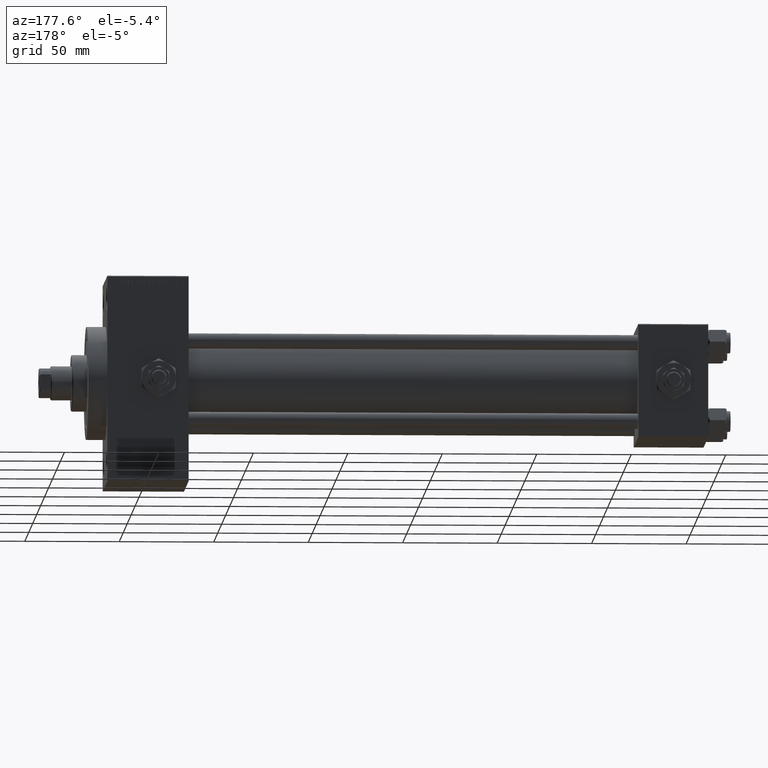
[diagram: clean part render]
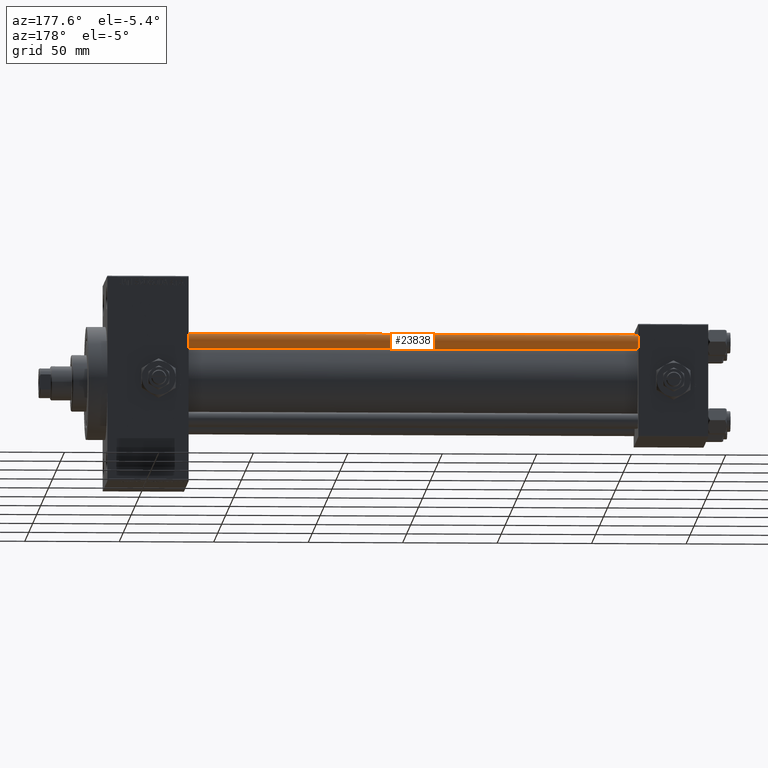
[diagram: same view with one face highlighted and labeled with its STEP entity id]
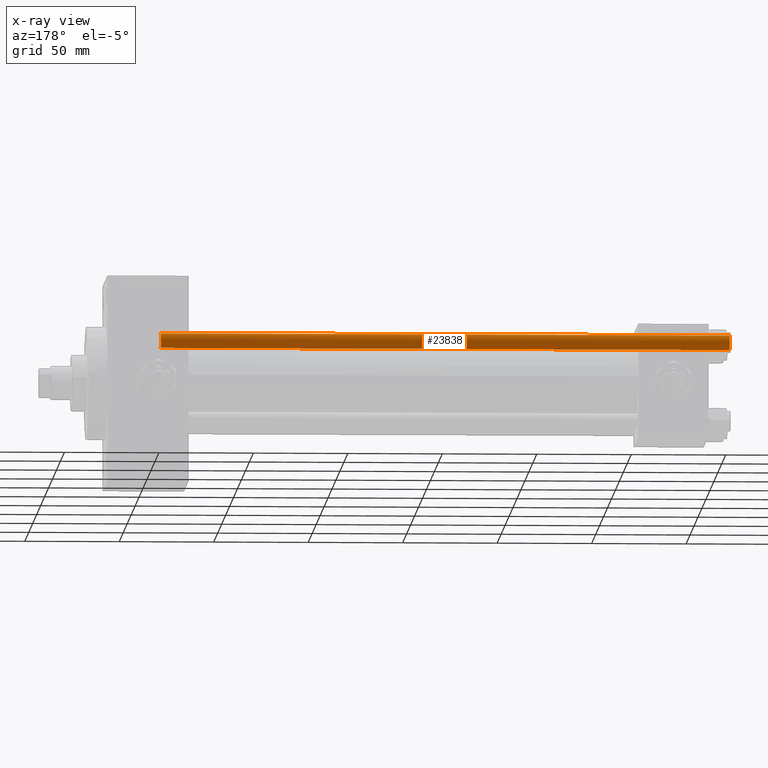
[diagram: x-ray of the same camera — body ghosted, the highlighted face saturated]
A machine part, auxiliary view. The second image highlights one B-rep face of the part: STEP entity #23838.
The next image is the same camera in x-ray: the body ghosted, the highlighted face saturated — about 0% of this face is hidden behind the body in this view.
In plain terms, the highlighted cylindrical surface (edge-blend (fillet) strip) has radius 4 mm, axis along (-1, -0, 0).
Its self-contained STEP definition (entity closure, byte-faithful):
#392 = CARTESIAN_POINT ( 'NONE',  ( -4.000000000000000000, 0.000000000000000000, 301.4999999999999432 ) ) ;
#1073 = AXIS2_PLACEMENT_3D ( 'NONE', #32049, #16522, #13020 ) ;
#1201 = EDGE_CURVE ( 'NONE', #20332, #47309, #13998, .T. ) ;
#2861 = CARTESIAN_POINT ( 'NONE',  ( 4.000000000000000000, 4.898587196589412829E-16, 0.5000000000000559552 ) ) ;
#3375 = DIRECTION ( 'NONE',  ( -0.000000000000000000, -0.000000000000000000, -1.000000000000000000 ) ) ;
#4002 = VECTOR ( 'NONE', #3375, 1000.000000000000000 ) ;
#6210 = CIRCLE ( 'NONE', #16606, 4.000000000000000000 ) ;
#7046 = EDGE_LOOP ( 'NONE', ( #15777, #38265, #27165, #11824 ) ) ;
#9645 = LINE ( 'NONE', #41148, #45346 ) ;
#10119 = DIRECTION ( 'NONE',  ( 0.000000000000000000, 0.000000000000000000, -1.000000000000000000 ) ) ;
#10760 = DIRECTION ( 'NONE',  ( -0.000000000000000000, -0.000000000000000000, 1.000000000000000000 ) ) ;
#11824 = ORIENTED_EDGE ( 'NONE', *, *, #47746, .F. ) ;
#12529 = CYLINDRICAL_SURFACE ( 'NONE', #1073, 4.000000000000000000 ) ;
#13020 = DIRECTION ( 'NONE',  ( -1.000000000000000000, 0.000000000000000000, 0.000000000000000000 ) ) ;
#13998 = CIRCLE ( 'NONE', #46761, 4.000000000000000000 ) ;
#15777 = ORIENTED_EDGE ( 'NONE', *, *, #1201, .T. ) ;
#16522 = DIRECTION ( 'NONE',  ( -0.000000000000000000, -0.000000000000000000, -1.000000000000000000 ) ) ;
#16606 = AXIS2_PLACEMENT_3D ( 'NONE', #34285, #10760, #46312 ) ;
#19211 = EDGE_CURVE ( 'NONE', #47309, #47766, #22417, .T. ) ;
#20314 = VERTEX_POINT ( 'NONE', #35693 ) ;
#20332 = VERTEX_POINT ( 'NONE', #392 ) ;
#20886 = CARTESIAN_POINT ( 'NONE',  ( 0.000000000000000000, 0.000000000000000000, 301.4999999999999432 ) ) ;
#21666 = CARTESIAN_POINT ( 'NONE',  ( 4.000000000000000000, 4.898587196589412829E-16, 302.0000000000000000 ) ) ;
#22417 = LINE ( 'NONE', #21666, #4002 ) ;
#23838 = ADVANCED_FACE ( 'NONE', ( #35806 ), #12529, .T. ) ;
#24911 = DIRECTION ( 'NONE',  ( -0.000000000000000000, -0.000000000000000000, -1.000000000000000000 ) ) ;
#27165 = ORIENTED_EDGE ( 'NONE', *, *, #48645, .T. ) ;
#32049 = CARTESIAN_POINT ( 'NONE',  ( 0.000000000000000000, 0.000000000000000000, 302.0000000000000000 ) ) ;
#32152 = DIRECTION ( 'NONE',  ( 1.000000000000000000, 0.000000000000000000, 0.000000000000000000 ) ) ;
#32233 = CARTESIAN_POINT ( 'NONE',  ( 4.000000000000000000, 4.898587196589412829E-16, 301.4999999999999432 ) ) ;
#34285 = CARTESIAN_POINT ( 'NONE',  ( 0.000000000000000000, 0.000000000000000000, 0.5000000000000559552 ) ) ;
#35693 = CARTESIAN_POINT ( 'NONE',  ( -4.000000000000000000, 0.000000000000000000, 0.5000000000000559552 ) ) ;
#35806 = FACE_OUTER_BOUND ( 'NONE', #7046, .T. ) ;
#38265 = ORIENTED_EDGE ( 'NONE', *, *, #19211, .T. ) ;
#41148 = CARTESIAN_POINT ( 'NONE',  ( -4.000000000000000000, 0.000000000000000000, 302.0000000000000000 ) ) ;
#45346 = VECTOR ( 'NONE', #24911, 1000.000000000000000 ) ;
#46312 = DIRECTION ( 'NONE',  ( 1.000000000000000000, 0.000000000000000000, 0.000000000000000000 ) ) ;
#46761 = AXIS2_PLACEMENT_3D ( 'NONE', #20886, #10119, #32152 ) ;
#47309 = VERTEX_POINT ( 'NONE', #32233 ) ;
#47746 = EDGE_CURVE ( 'NONE', #20332, #20314, #9645, .T. ) ;
#47766 = VERTEX_POINT ( 'NONE', #2861 ) ;
#48645 = EDGE_CURVE ( 'NONE', #47766, #20314, #6210, .T. ) ;